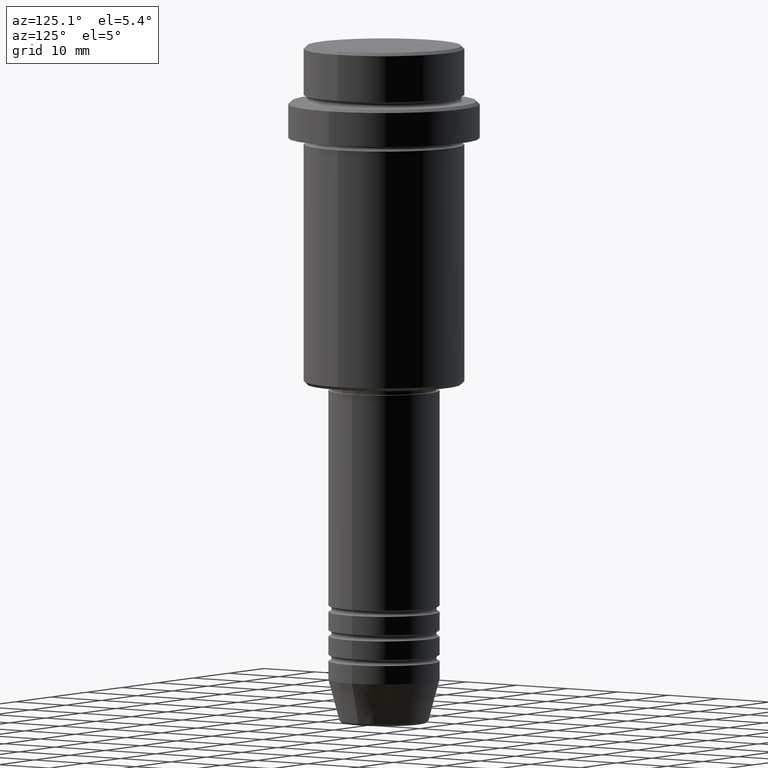
[diagram: clean part render]
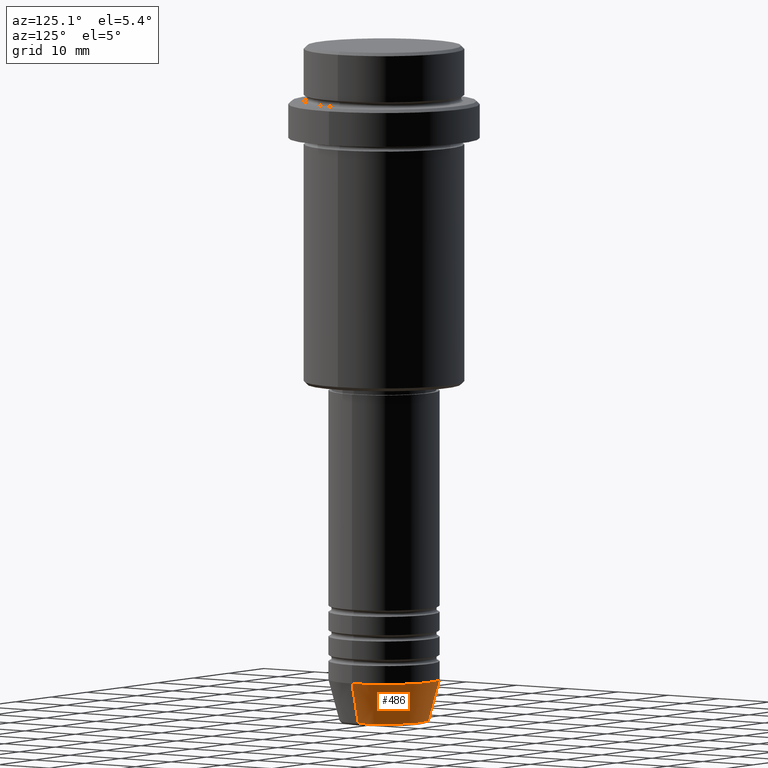
[diagram: same view with one face highlighted and labeled with its STEP entity id]
A machine part, auxiliary view. The second image highlights one B-rep face of the part: STEP entity #486.
In plain terms, the highlighted conical surface has half-angle 15 deg.
Its self-contained STEP definition (entity closure, byte-faithful):
#5 = AXIS2_PLACEMENT_3D ( 'NONE', #153, #589, #1007 ) ;
#120 = AXIS2_PLACEMENT_3D ( 'NONE', #1370, #832, #1037 ) ;
#122 = DIRECTION ( 'NONE',  ( 0.2588190451025213501, 0.000000000000000000, 0.9659258262890680902 ) ) ;
#134 = EDGE_CURVE ( 'NONE', #223, #285, #405, .T. ) ;
#139 = LINE ( 'NONE', #580, #1122 ) ;
#145 = DIRECTION ( 'NONE',  ( -0.000000000000000000, -0.000000000000000000, 1.000000000000000000 ) ) ;
#153 = CARTESIAN_POINT ( 'NONE',  ( 0.000000000000000000, 0.000000000000000000, -109.6294095225512564 ) ) ;
#207 = ORIENTED_EDGE ( 'NONE', *, *, #533, .F. ) ;
#208 = VECTOR ( 'NONE', #1157, 1000.000000000000000 ) ;
#223 = VERTEX_POINT ( 'NONE', #1271 ) ;
#285 = VERTEX_POINT ( 'NONE', #932 ) ;
#363 = CIRCLE ( 'NONE', #120, 9.000000000000000000 ) ;
#378 = LINE ( 'NONE', #717, #208 ) ;
#405 = CIRCLE ( 'NONE', #5, 7.223655072137197486 ) ;
#428 = EDGE_LOOP ( 'NONE', ( #1226, #871, #913, #207 ) ) ;
#468 = DIRECTION ( 'NONE',  ( 1.000000000000000000, 0.000000000000000000, 0.000000000000000000 ) ) ;
#486 = ADVANCED_FACE ( 'NONE', ( #891 ), #1260, .T. ) ;
#533 = EDGE_CURVE ( 'NONE', #223, #794, #139, .T. ) ;
#559 = VERTEX_POINT ( 'NONE', #1012 ) ;
#562 = CARTESIAN_POINT ( 'NONE',  ( 0.000000000000000000, 0.000000000000000000, -103.0000000000000142 ) ) ;
#580 = CARTESIAN_POINT ( 'NONE',  ( 9.000000000000000000, 0.000000000000000000, -103.0000000000000142 ) ) ;
#589 = DIRECTION ( 'NONE',  ( -0.000000000000000000, -0.000000000000000000, 1.000000000000000000 ) ) ;
#664 = EDGE_CURVE ( 'NONE', #285, #559, #378, .T. ) ;
#681 = EDGE_CURVE ( 'NONE', #794, #559, #363, .T. ) ;
#717 = CARTESIAN_POINT ( 'NONE',  ( -9.000000000000000000, 1.102182119232617714E-15, -103.0000000000000142 ) ) ;
#794 = VERTEX_POINT ( 'NONE', #978 ) ;
#832 = DIRECTION ( 'NONE',  ( -0.000000000000000000, -0.000000000000000000, 1.000000000000000000 ) ) ;
#871 = ORIENTED_EDGE ( 'NONE', *, *, #664, .T. ) ;
#891 = FACE_OUTER_BOUND ( 'NONE', #428, .T. ) ;
#913 = ORIENTED_EDGE ( 'NONE', *, *, #681, .F. ) ;
#932 = CARTESIAN_POINT ( 'NONE',  ( -7.223655072137198374, 9.934123627281771026E-16, -109.6294095225512564 ) ) ;
#978 = CARTESIAN_POINT ( 'NONE',  ( 9.000000000000000000, 0.000000000000000000, -103.0000000000000142 ) ) ;
#1007 = DIRECTION ( 'NONE',  ( 1.000000000000000000, 0.000000000000000000, 0.000000000000000000 ) ) ;
#1012 = CARTESIAN_POINT ( 'NONE',  ( -9.000000000000000000, 1.102182119232617714E-15, -103.0000000000000142 ) ) ;
#1030 = AXIS2_PLACEMENT_3D ( 'NONE', #562, #145, #468 ) ;
#1037 = DIRECTION ( 'NONE',  ( 1.000000000000000000, 0.000000000000000000, 0.000000000000000000 ) ) ;
#1122 = VECTOR ( 'NONE', #122, 1000.000000000000000 ) ;
#1157 = DIRECTION ( 'NONE',  ( -0.2588190451025213501, 3.169619151431772337E-17, 0.9659258262890680902 ) ) ;
#1226 = ORIENTED_EDGE ( 'NONE', *, *, #134, .T. ) ;
#1260 = CONICAL_SURFACE ( 'NONE', #1030, 9.000000000000000000, 0.2617993877991500740 ) ;
#1271 = CARTESIAN_POINT ( 'NONE',  ( 7.223655072137197486, 0.000000000000000000, -109.6294095225512564 ) ) ;
#1370 = CARTESIAN_POINT ( 'NONE',  ( 0.000000000000000000, 0.000000000000000000, -103.0000000000000142 ) ) ;